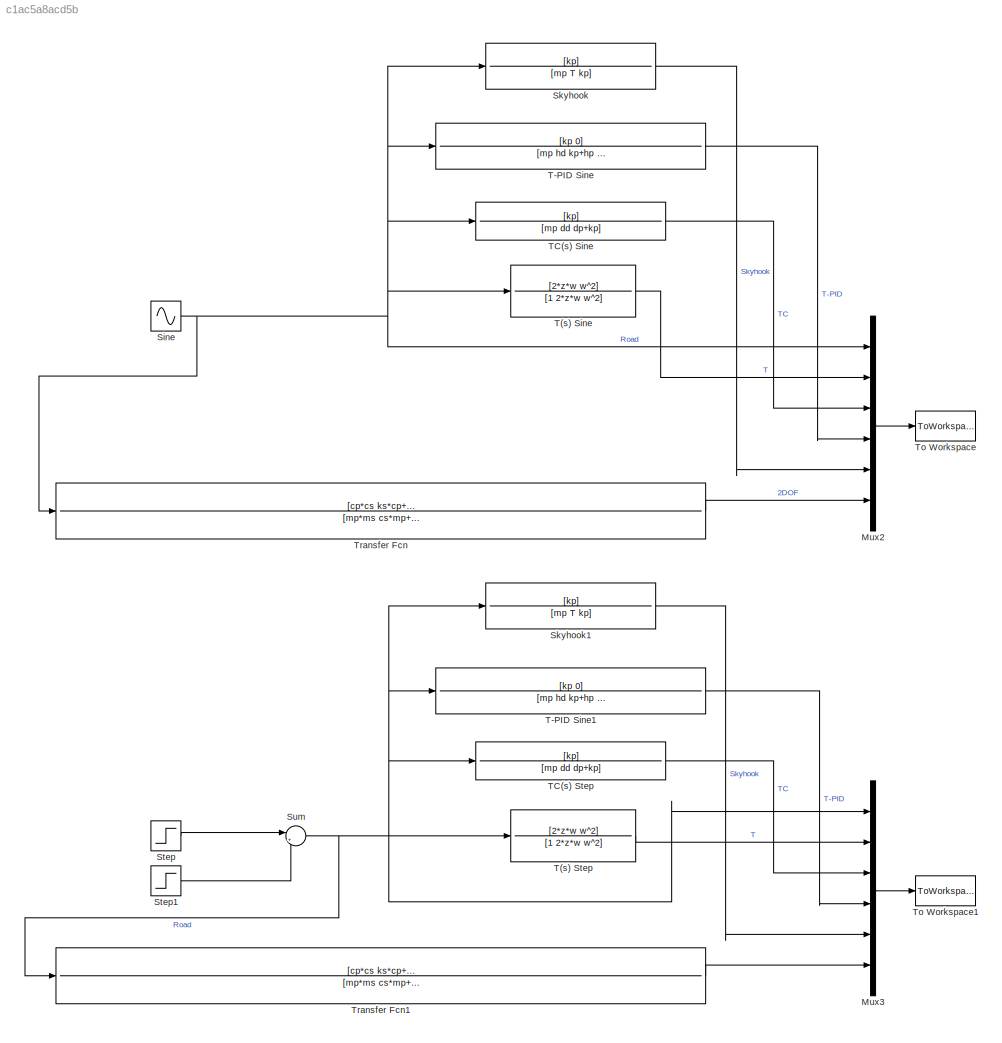
MODEL slx_c1ac5a8acd5b
KIND model
CONFIG AbsTol = auto
CONFIG EnableMultiTasking = off
CONFIG FixedStep = auto
CONFIG MaxStep = auto
CONFIG MinStep = auto
CONFIG RelTol = 1e-3
CONFIG SampleTimeConstraint = Unconstrained
CONFIG Solver = VariableStepAuto
CONFIG SolverName = VariableStepAuto
CONFIG StartTime = 0.0
CONFIG StopTime = Time
BLOCK [Mux] Mux2
  DisplayOption = bar
  Inputs = 6
  Ports = [6, 1]
BLOCK [Mux] Mux3
  DisplayOption = bar
  Inputs = 6
  Ports = [6, 1]
BLOCK [Sin] Sine
  Amplitude = 0.05
  Frequency = sinefreq
  Ports = [0, 1]
  SampleTime = 0
BLOCK [TransferFcn] Skyhook
  Denominator = [mp T kp]
  Numerator = [kp]
BLOCK [TransferFcn] Skyhook1
  Denominator = [mp T kp]
  Numerator = [kp]
BLOCK [Step] Step
  After = 0.05
  SampleTime = 0
BLOCK [Step] Step1
  After = -0.05
  SampleTime = 0
  Time = 2
BLOCK [Sum] Sum
  IconShape = round
  InputSameDT = off
  Inputs = |++
  OutDataTypeStr = Inherit: Inherit via internal rule
  Ports = [2, 1]
  SaturateOnIntegerOverflow = off
BLOCK [TransferFcn] T(s) Sine
  Denominator = [1 2*z*w w^2]
  Numerator = [2*z*w w^2]
BLOCK [TransferFcn] T(s) Step
  Denominator = [1 2*z*w w^2]
  Numerator = [2*z*w w^2]
BLOCK [TransferFcn] T-PID Sine
  Denominator = [mp hd kp+hp hi]
  Numerator = [kp 0]
BLOCK [TransferFcn] T-PID Sine1
  Denominator = [mp hd kp+hp hi]
  Numerator = [kp 0]
BLOCK [TransferFcn] TC(s) Sine
  Denominator = [mp dd dp+kp]
  Numerator = [kp]
BLOCK [TransferFcn] TC(s) Step
  Denominator = [mp dd dp+kp]
  Numerator = [kp]
BLOCK [ToWorkspace] To Workspace
  FixptAsFi = on
  MaxDataPoints = inf
  Ports = [1]
  SampleTime = -1
  Save2DSignal = 3-D array (concatenate along third dimension)
  SaveFormat = Structure With Time
  VariableName = Sim_sine
BLOCK [ToWorkspace] To Workspace1
  FixptAsFi = on
  MaxDataPoints = inf
  Ports = [1]
  SampleTime = -1
  Save2DSignal = 3-D array (concatenate along third dimension)
  SaveFormat = Structure With Time
  VariableName = Sim_step
BLOCK [TransferFcn] Transfer Fcn
  Denominator = [mp*ms cs*mp+cp*ms+cs*ms ks*mp+cp*ms+kp*ms+ms*ks kp*cs+ks*cp kp*ks]
  Numerator = [cp*cs ks*cp+kp*cs kp*ks]
BLOCK [TransferFcn] Transfer Fcn1
  Denominator = [mp*ms cs*mp+cp*ms+cs*ms ks*mp+cp*ms+kp*ms+ms*ks kp*cs+ks*cp kp*ks]
  Numerator = [cp*cs ks*cp+kp*cs kp*ks]
LINE Mux2:1 -> To Workspace:1
LINE Mux3:1 -> To Workspace1:1
NET Sine:1 -> Mux2:1, Skyhook:1, T(s) Sine:1, T-PID Sine:1, TC(s) Sine:1, Transfer Fcn:1
LINE Skyhook1:1 -> Mux3:5
LINE Skyhook:1 -> Mux2:5
LINE Step1:1 -> Sum:2
LINE Step:1 -> Sum:1
NET Sum:1 -> Mux3:1, Skyhook1:1, T(s) Step:1, T-PID Sine1:1, TC(s) Step:1, Transfer Fcn1:1
LINE T(s) Sine:1 -> Mux2:2
LINE T(s) Step:1 -> Mux3:2
LINE T-PID Sine1:1 -> Mux3:4
LINE T-PID Sine:1 -> Mux2:4
LINE TC(s) Sine:1 -> Mux2:3
LINE TC(s) Step:1 -> Mux3:3
LINE Transfer Fcn1:1 -> Mux3:6
LINE Transfer Fcn:1 -> Mux2:6
note: NET lines group one-source signal fan-out (src -> all destinations, sorted); 1:1 wires keep LINE
